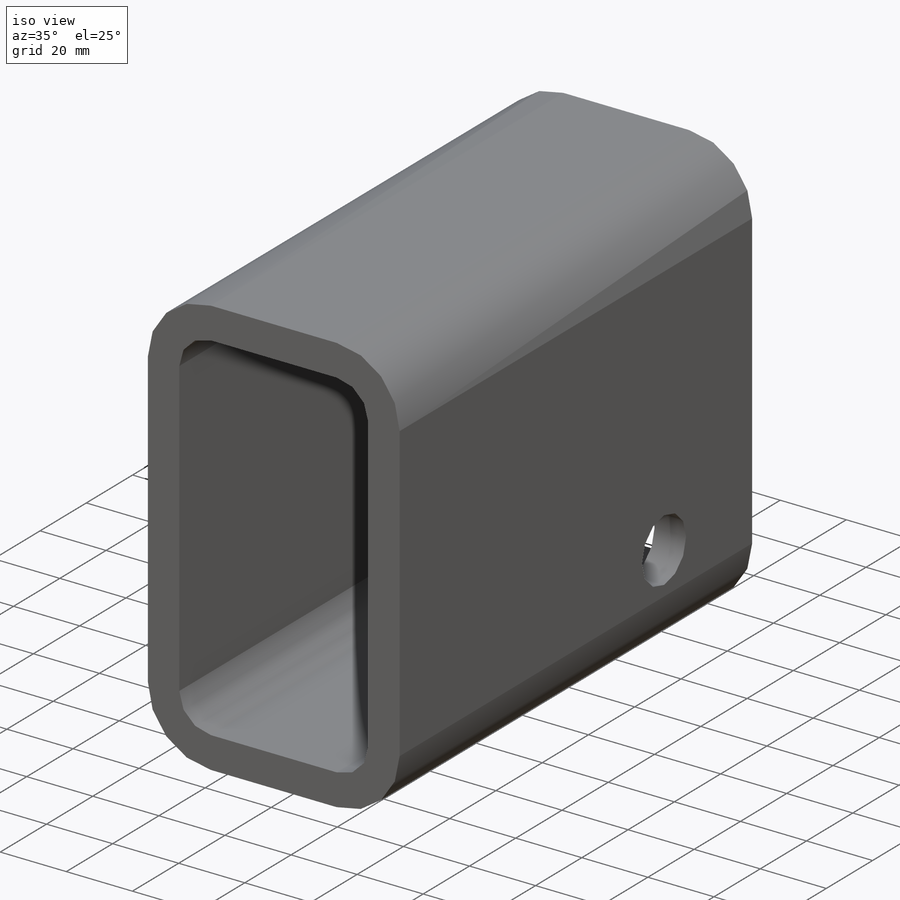
[diagram: iso view]
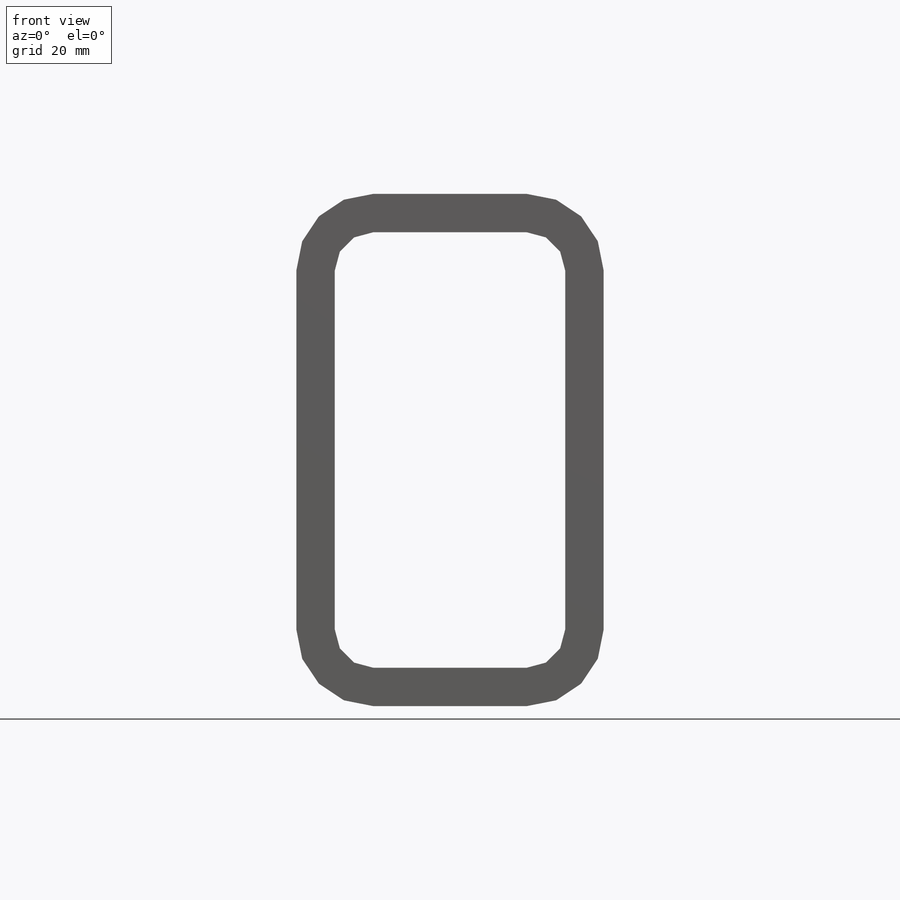
[diagram: front view]
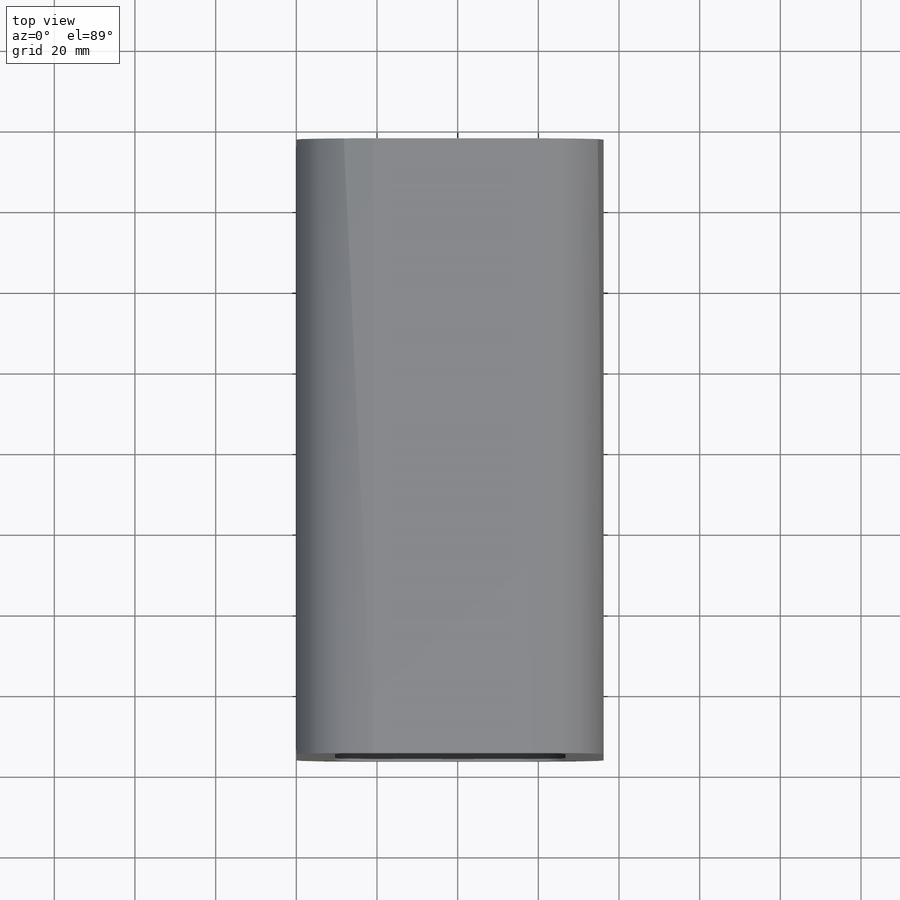
[diagram: top view]
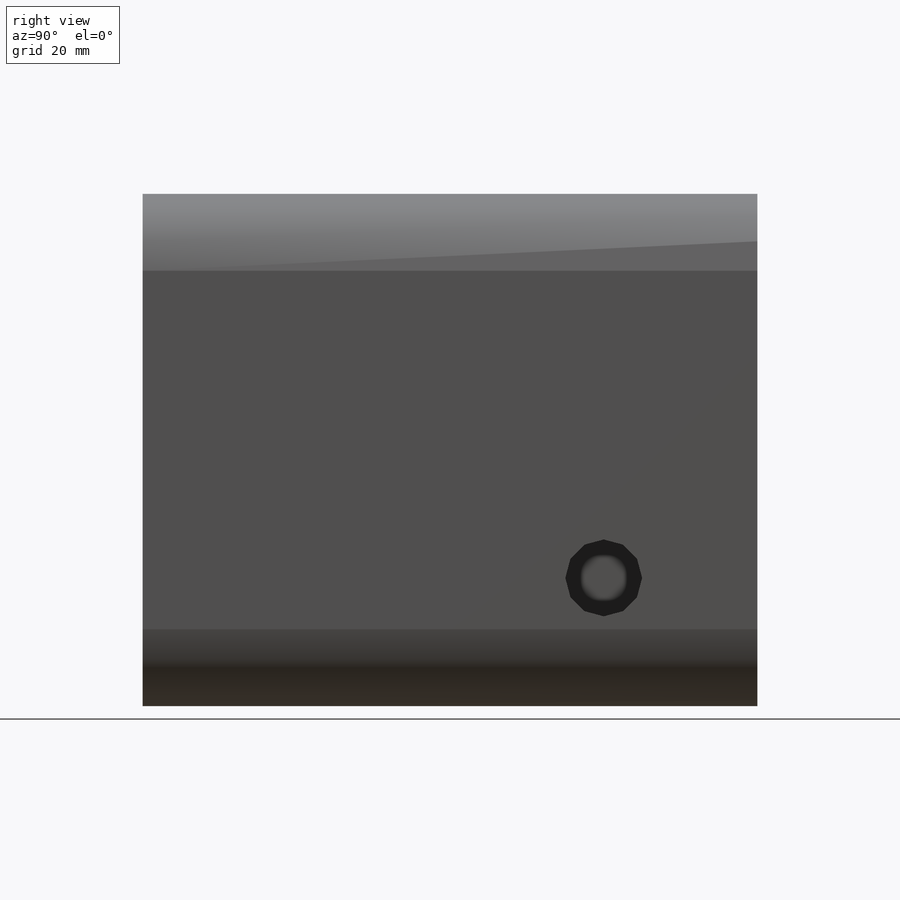
[diagram: right view]
SOLIDWORKS PART (.sldprt)
format: sldprt  version: not decoded by parser v0  size: 429,056 bytes
history: native  units: mm
features: sketch x4, plane x3, material x1, extrude x1, cut_extrude x1 (+8 scaffold rows collapsed)
feature tree (18):
  scaffold x8  (default folders/planes/origin — collapsed)
  material  "Material <not specified>"
  plane  "Plane1"
  plane  "Plane2"
  plane  "Plane3"
  sketch  "Sketch1"  dims[c1.CurrentVersion=0.0mm c1.EditFunction=0.0mm c1.Type=0.0mm c1.SubType=0.0mm c1.Application=0.0mm c2.CurrentVersion=0.0mm c2.EditFunction=0.0mm c2.Type=0.0mm c2.SubType=0.0mm]
  sketch  "CimSteelSettings6.015257"  dims[c1.STANDARD=0.0mm c1.SIZE=0.0mm c1.TYPE=0.0mm c1.CimSteelSettings6.0=0.0mm c2.STANDARD=0.0mm c2.SIZE=0.0mm c2.TYPE=0.0mm c2.D1=6.35mm c2.D2=6.35mm c2.D3=6.35mm c2.D4=6.35mm c2.D5=6.35mm c2.D6=6.35mm c2.D7=6.35mm c2.D8=6.35mm c3.D1=6.604mm c3.D2=6.604mm c3.D3=6.604mm c3.D4=6.604mm c4.D1=19.05mm c4.Thickness=9.525mm c4.D4=12.9032mm c4.D5=12.9286mm c4.V_leg=127.0mm c4.H_leg=76.2mm c5.D4=50.3428mm c5.D5=50.8508mm c6.D4=~41.274964mm c6.D5=~41.274964mm]
  extrude  "BaseTubeR"  Depth=152.4mm Length=152.4mm
  sketch  "Sketch2"  dims[c1.D1=11.1125mm c1.D3=11.1125mm c1.D4=11.1125mm c1.D5=11.1125mm c1.D2=38.1mm c2.D3=12.7mm c2.D5=~92.136357mm]
  sketch  "Sketch3"  dims[c1.D1=19.05mm c1.D2=11.1125mm c1.D3=11.1125mm c2.D2=38.1mm c2.D3=12.7mm]
  cut_extrude  "Cut-Extrude2"  [1 undecoded]
decode coverage: 5 of 6 modeling features carry decoded parameters
note: ~ marks probable driven/reference dimensions
note: 1 parameter value undecoded
note: suppression state not decoded; provenance and decode notes live in map.json
